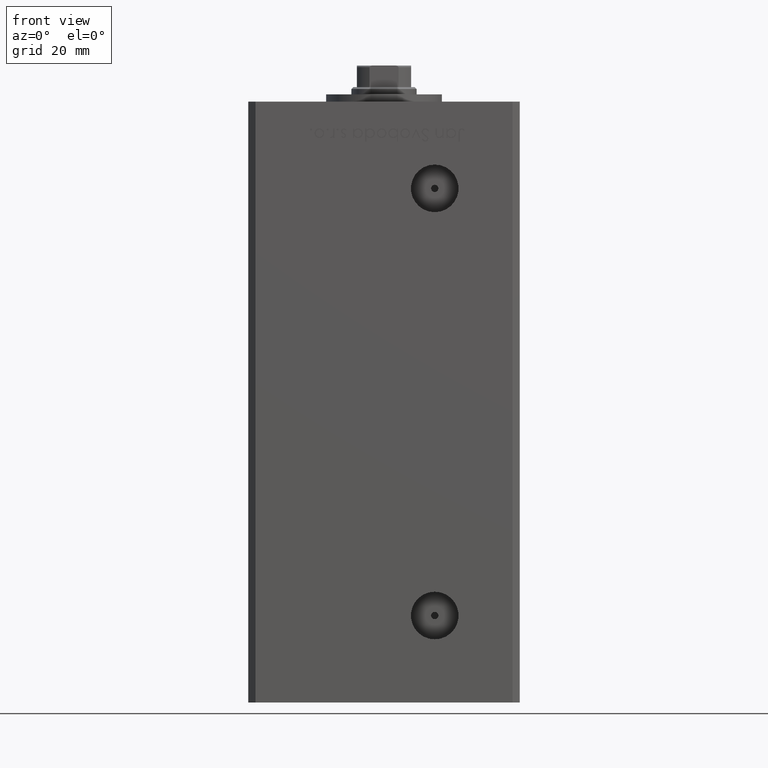
[diagram: clean part render]
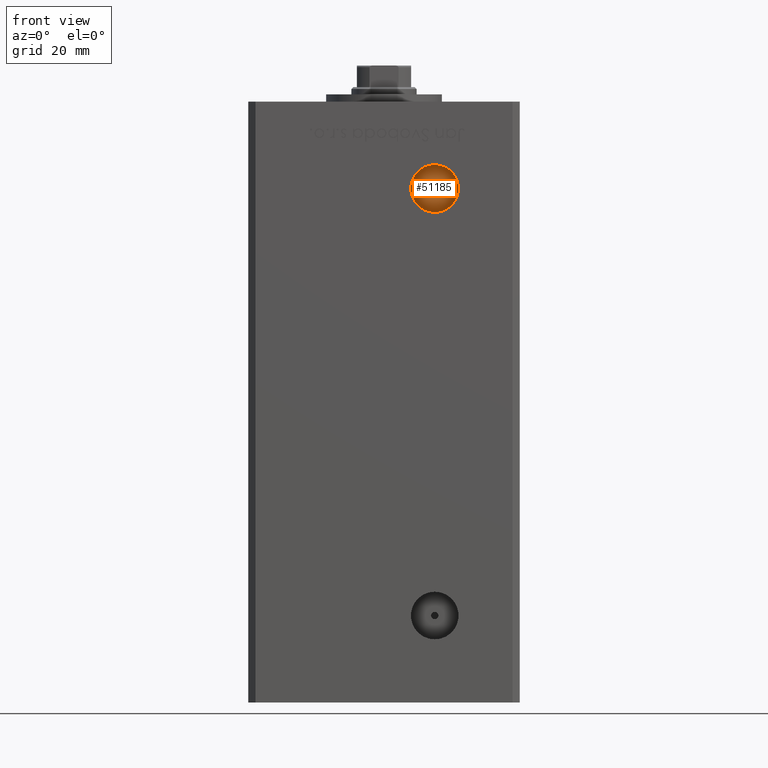
[diagram: same view with one face highlighted and labeled with its STEP entity id]
A machine part, front view. The second image highlights one B-rep face of the part: STEP entity #51185.
In plain terms, the highlighted planar face has unit normal (0, -1, 0).
Its self-contained STEP definition (entity closure, byte-faithful):
#2773 = VERTEX_POINT ( 'NONE', #20737 ) ;
#3753 = EDGE_LOOP ( 'NONE', ( #13803, #22889 ) ) ;
#5285 = AXIS2_PLACEMENT_3D ( 'NONE', #27456, #19800, #40374 ) ;
#5709 = CARTESIAN_POINT ( 'NONE',  ( 13.99999999999999112, -19.50000000000000355, 133.5800000000000125 ) ) ;
#5958 = EDGE_CURVE ( 'NONE', #38418, #10682, #33950, .T. ) ;
#6301 = FACE_BOUND ( 'NONE', #3753, .T. ) ;
#9094 = DIRECTION ( 'NONE',  ( -0.000000000000000000, 1.000000000000000000, -0.000000000000000000 ) ) ;
#10682 = VERTEX_POINT ( 'NONE', #5709 ) ;
#12242 = DIRECTION ( 'NONE',  ( 0.000000000000000000, -1.000000000000000000, 0.000000000000000000 ) ) ;
#13803 = ORIENTED_EDGE ( 'NONE', *, *, #42556, .F. ) ;
#14740 = DIRECTION ( 'NONE',  ( 0.000000000000000000, -0.000000000000000000, -1.000000000000000000 ) ) ;
#17034 = EDGE_CURVE ( 'NONE', #10682, #38418, #45929, .T. ) ;
#17827 = AXIS2_PLACEMENT_3D ( 'NONE', #34552, #22397, #14740 ) ;
#19800 = DIRECTION ( 'NONE',  ( -0.000000000000000000, 1.000000000000000000, -0.000000000000000000 ) ) ;
#20026 = DIRECTION ( 'NONE',  ( 0.000000000000000000, 0.000000000000000000, -1.000000000000000000 ) ) ;
#20737 = CARTESIAN_POINT ( 'NONE',  ( 13.99999999999999112, -19.50000000000000355, 128.0000000000000000 ) ) ;
#20819 = CIRCLE ( 'NONE', #31773, 1.000000000000000888 ) ;
#20936 = CARTESIAN_POINT ( 'NONE',  ( 13.99999999999999112, -19.50000000000000355, 127.0000000000000000 ) ) ;
#22397 = DIRECTION ( 'NONE',  ( 0.000000000000000000, -1.000000000000000000, 0.000000000000000000 ) ) ;
#22647 = AXIS2_PLACEMENT_3D ( 'NONE', #20936, #12242, #36537 ) ;
#22889 = ORIENTED_EDGE ( 'NONE', *, *, #22927, .F. ) ;
#22927 = EDGE_CURVE ( 'NONE', #2773, #51563, #20819, .T. ) ;
#23989 = DIRECTION ( 'NONE',  ( 0.000000000000000000, -1.000000000000000000, 0.000000000000000000 ) ) ;
#25197 = CARTESIAN_POINT ( 'NONE',  ( 13.99999999999999112, -19.50000000000000355, 127.0000000000000000 ) ) ;
#25443 = CARTESIAN_POINT ( 'NONE',  ( 13.99999999999999112, -19.50000000000000355, 126.0000000000000000 ) ) ;
#26624 = PLANE ( 'NONE',  #17827 ) ;
#27456 = CARTESIAN_POINT ( 'NONE',  ( 13.99999999999999112, -19.50000000000000355, 127.0000000000000000 ) ) ;
#28220 = AXIS2_PLACEMENT_3D ( 'NONE', #25197, #9094, #44983 ) ;
#31773 = AXIS2_PLACEMENT_3D ( 'NONE', #44042, #23989, #20026 ) ;
#33950 = CIRCLE ( 'NONE', #5285, 6.580000000000002736 ) ;
#34142 = EDGE_LOOP ( 'NONE', ( #47282, #39448 ) ) ;
#34552 = CARTESIAN_POINT ( 'NONE',  ( 0.000000000000000000, -19.50000000000000355, 0.000000000000000000 ) ) ;
#36537 = DIRECTION ( 'NONE',  ( 0.000000000000000000, 0.000000000000000000, -1.000000000000000000 ) ) ;
#38418 = VERTEX_POINT ( 'NONE', #43313 ) ;
#39448 = ORIENTED_EDGE ( 'NONE', *, *, #17034, .F. ) ;
#40374 = DIRECTION ( 'NONE',  ( 0.000000000000000000, 0.000000000000000000, -1.000000000000000000 ) ) ;
#42556 = EDGE_CURVE ( 'NONE', #51563, #2773, #43693, .T. ) ;
#43313 = CARTESIAN_POINT ( 'NONE',  ( 13.99999999999999112, -19.50000000000000355, 120.4200000000000017 ) ) ;
#43693 = CIRCLE ( 'NONE', #22647, 1.000000000000000888 ) ;
#44042 = CARTESIAN_POINT ( 'NONE',  ( 13.99999999999999112, -19.50000000000000355, 127.0000000000000000 ) ) ;
#44983 = DIRECTION ( 'NONE',  ( 0.000000000000000000, 0.000000000000000000, -1.000000000000000000 ) ) ;
#45929 = CIRCLE ( 'NONE', #28220, 6.580000000000002736 ) ;
#47282 = ORIENTED_EDGE ( 'NONE', *, *, #5958, .F. ) ;
#51185 = ADVANCED_FACE ( 'NONE', ( #6301, #51681 ), #26624, .T. ) ;
#51563 = VERTEX_POINT ( 'NONE', #25443 ) ;
#51681 = FACE_OUTER_BOUND ( 'NONE', #34142, .T. ) ;